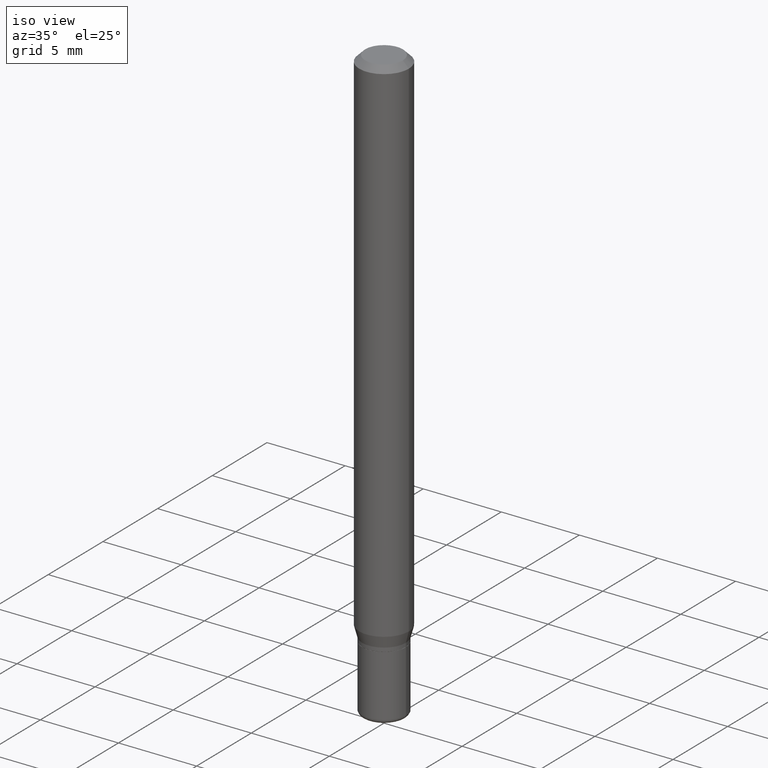
[diagram: clean part render]
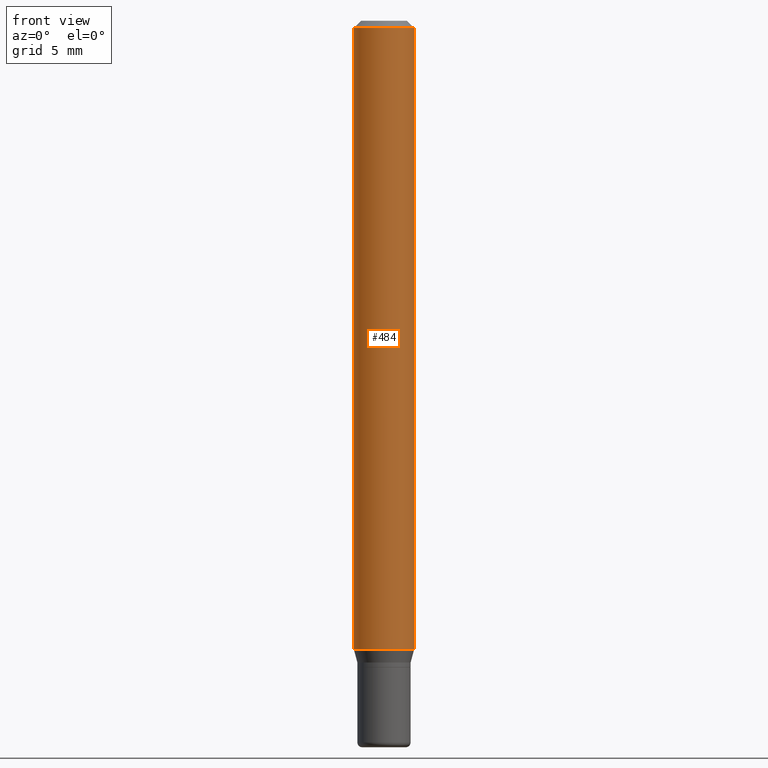
[diagram: tour spotlight — one face highlighted and labeled with its STEP entity id]
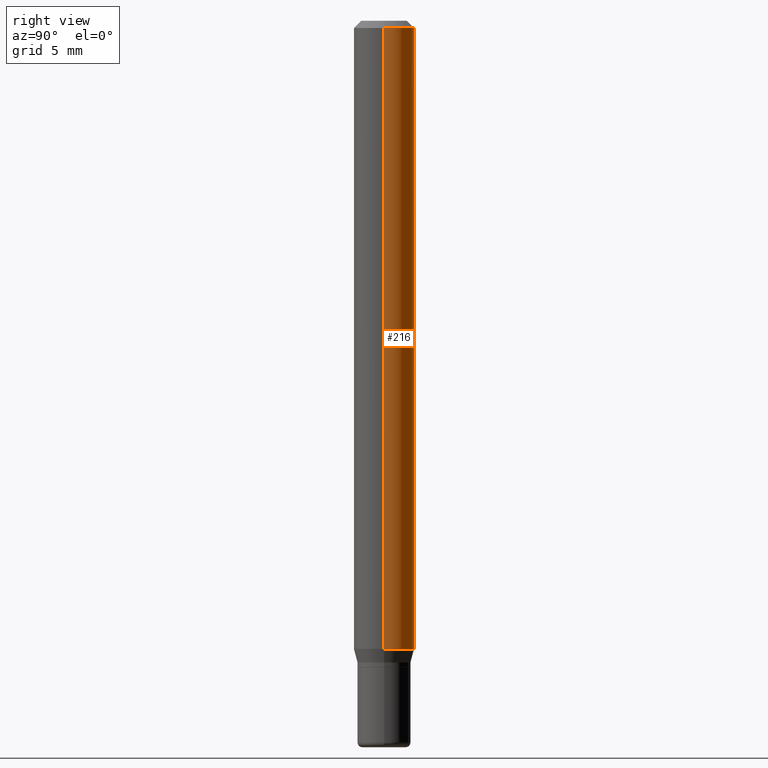
[diagram: tour spotlight — one face highlighted and labeled with its STEP entity id]
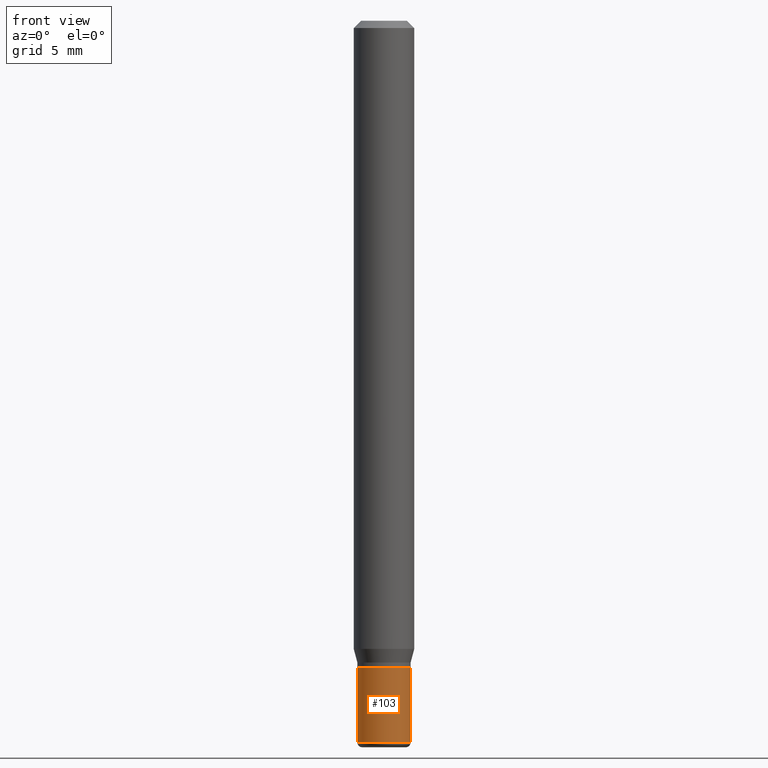
[diagram: tour spotlight — one face highlighted and labeled with its STEP entity id]
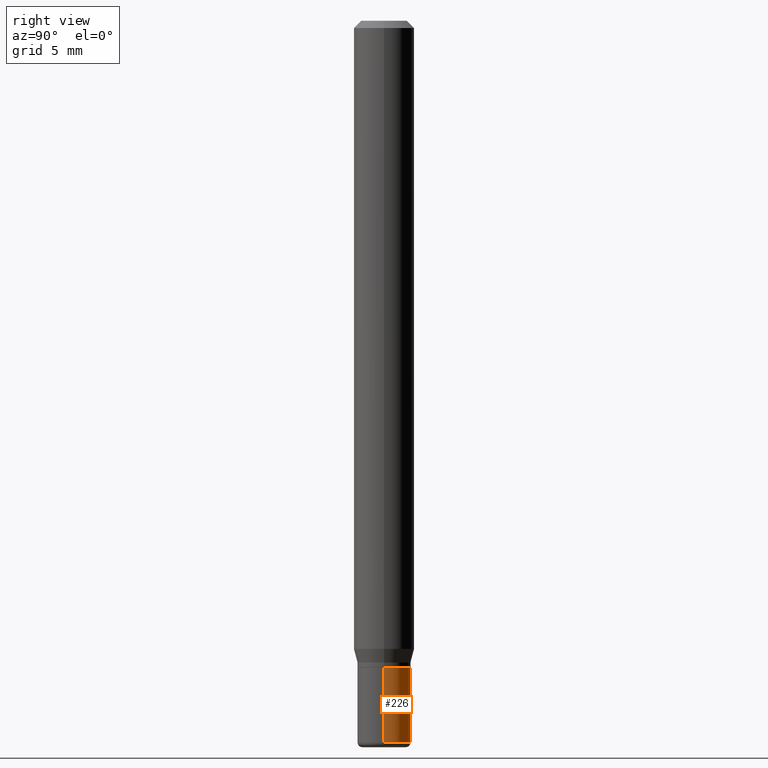
[diagram: tour spotlight — one face highlighted and labeled with its STEP entity id]
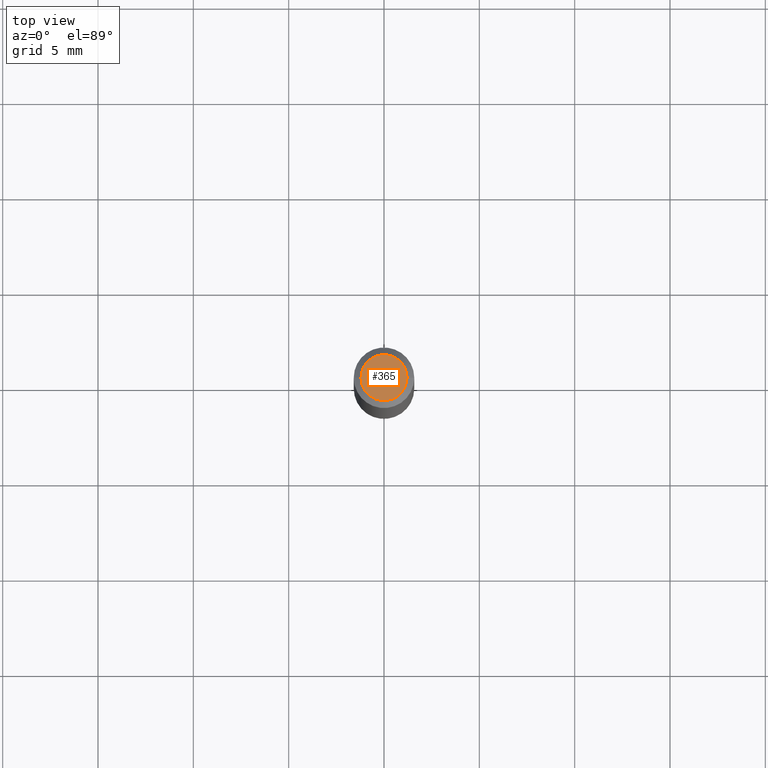
[diagram: tour spotlight — one face highlighted and labeled with its STEP entity id]
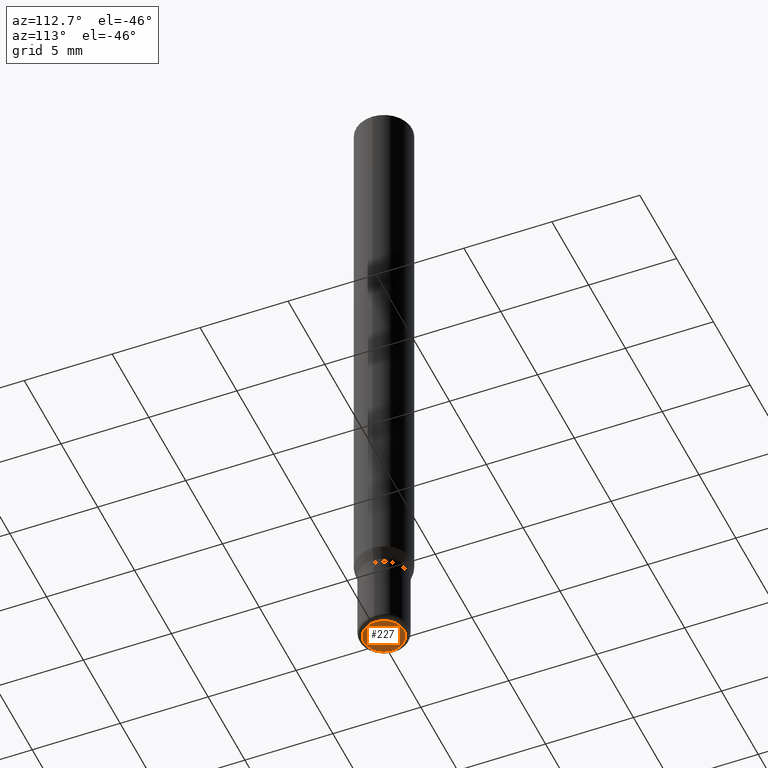
[diagram: tour spotlight — one face highlighted and labeled with its STEP entity id]
A machine part: a face-by-face anatomy tour. The part has 18 B-rep faces; the first image is the clean iso view, then the 6 largest visible faces are spotlighted one at a time (largest first), each with its STEP entity span.

Face 1 — front view, entity #484. In plain terms, the highlighted cylindrical surface (edge-blend (fillet) strip) has radius 1.5875 mm, axis along (-0, 0, 1).
Definition (entity closure, byte-faithful):
#86 = DIRECTION ( 'NONE',  ( -2.445468806185136877E-29, 3.491481338843145188E-15, 1.000000000000000000 ) ) ;
#96 = DIRECTION ( 'NONE',  ( -2.445468806185136877E-29, 3.491481338843145188E-15, 1.000000000000000000 ) ) ;
#119 = CARTESIAN_POINT ( 'NONE',  ( -0.06250000000000000000, -1.846339340611439838E-15, -0.01499999999999970281 ) ) ;
#122 = EDGE_CURVE ( 'NONE', #348, #471, #427, .T. ) ;
#139 = DIRECTION ( 'NONE',  ( -2.445468806185136597E-29, 3.491481338843145583E-15, 1.000000000000000000 ) ) ;
#146 = CYLINDRICAL_SURFACE ( 'NONE', #515, 0.06250000000000000000 ) ;
#147 = CARTESIAN_POINT ( 'NONE',  ( 0.000000000000000000, 0.000000000000000000, 0.000000000000000000 ) ) ;
#160 = CARTESIAN_POINT ( 'NONE',  ( 0.06250000000000000000, -4.888073874380378612E-16, -0.01499999999999970281 ) ) ;
#199 = DIRECTION ( 'NONE',  ( 1.000000000000000000, -6.982962677686266711E-15, 0.000000000000000000 ) ) ;
#209 = LINE ( 'NONE', #446, #459 ) ;
#212 = LINE ( 'NONE', #373, #450 ) ;
#222 = CARTESIAN_POINT ( 'NONE',  ( 0.06250000000000000000, -4.964920048195750682E-15, -1.297009618943233633 ) ) ;
#239 = CARTESIAN_POINT ( 'NONE',  ( 3.668203209277632395E-31, -5.237222008264614861E-17, -0.01499999999999970281 ) ) ;
#250 = FACE_OUTER_BOUND ( 'NONE', #266, .T. ) ;
#252 = AXIS2_PLACEMENT_3D ( 'NONE', #239, #404, #199 ) ;
#266 = EDGE_LOOP ( 'NONE', ( #509, #422, #306, #353 ) ) ;
#291 = DIRECTION ( 'NONE',  ( 1.000000000000000000, -6.982962677686262766E-15, 0.000000000000000000 ) ) ;
#306 = ORIENTED_EDGE ( 'NONE', *, *, #313, .T. ) ;
#313 = EDGE_CURVE ( 'NONE', #501, #471, #212, .T. ) ;
#327 = CARTESIAN_POINT ( 'NONE',  ( -0.06250000000000000000, -4.084395670990297185E-15, -1.297009618943233633 ) ) ;
#331 = EDGE_CURVE ( 'NONE', #396, #501, #384, .T. ) ;
#336 = CARTESIAN_POINT ( 'NONE',  ( 3.171796564447748341E-29, -4.528484880840359801E-15, -1.297009618943233633 ) ) ;
#348 = VERTEX_POINT ( 'NONE', #119 ) ;
#352 = EDGE_CURVE ( 'NONE', #396, #348, #209, .T. ) ;
#353 = ORIENTED_EDGE ( 'NONE', *, *, #122, .F. ) ;
#373 = CARTESIAN_POINT ( 'NONE',  ( 0.06250000000000000000, -4.364351673553916694E-16, 3.047610484872459871E-30 ) ) ;
#384 = CIRCLE ( 'NONE', #507, 0.06250000000000000000 ) ;
#396 = VERTEX_POINT ( 'NONE', #327 ) ;
#404 = DIRECTION ( 'NONE',  ( -2.445468806185136597E-29, 3.491481338843145583E-15, 1.000000000000000000 ) ) ;
#418 = DIRECTION ( 'NONE',  ( -2.445468806185136597E-29, 3.491481338843145583E-15, 1.000000000000000000 ) ) ;
#422 = ORIENTED_EDGE ( 'NONE', *, *, #331, .T. ) ;
#423 = DIRECTION ( 'NONE',  ( 1.000000000000000000, -6.982962677686266711E-15, 4.876176775795935793E-29 ) ) ;
#427 = CIRCLE ( 'NONE', #252, 0.06250000000000000000 ) ;
#446 = CARTESIAN_POINT ( 'NONE',  ( -0.06250000000000000000, 4.440892098500626162E-16, -3.074334431409316114E-30 ) ) ;
#450 = VECTOR ( 'NONE', #96, 39.37007874015748143 ) ;
#459 = VECTOR ( 'NONE', #86, 39.37007874015748143 ) ;
#471 = VERTEX_POINT ( 'NONE', #160 ) ;
#484 = ADVANCED_FACE ( 'NONE', ( #250 ), #146, .T. ) ;
#501 = VERTEX_POINT ( 'NONE', #222 ) ;
#507 = AXIS2_PLACEMENT_3D ( 'NONE', #336, #139, #291 ) ;
#509 = ORIENTED_EDGE ( 'NONE', *, *, #352, .F. ) ;
#515 = AXIS2_PLACEMENT_3D ( 'NONE', #147, #418, #423 ) ;

Face 2 — right view, entity #216. In plain terms, the highlighted cylindrical surface (edge-blend (fillet) strip) has radius 1.5875 mm, axis along (-0, 0, 1).
Definition (entity closure, byte-faithful):
#12 = DIRECTION ( 'NONE',  ( 1.000000000000000000, -6.982962677686266711E-15, 0.000000000000000000 ) ) ;
#16 = DIRECTION ( 'NONE',  ( -2.445468806185136597E-29, 3.491481338843145583E-15, 1.000000000000000000 ) ) ;
#57 = DIRECTION ( 'NONE',  ( 1.000000000000000000, -6.982962677686262766E-15, 0.000000000000000000 ) ) ;
#60 = FACE_OUTER_BOUND ( 'NONE', #221, .T. ) ;
#86 = DIRECTION ( 'NONE',  ( -2.445468806185136877E-29, 3.491481338843145188E-15, 1.000000000000000000 ) ) ;
#96 = DIRECTION ( 'NONE',  ( -2.445468806185136877E-29, 3.491481338843145188E-15, 1.000000000000000000 ) ) ;
#111 = ORIENTED_EDGE ( 'NONE', *, *, #313, .F. ) ;
#119 = CARTESIAN_POINT ( 'NONE',  ( -0.06250000000000000000, -1.846339340611439838E-15, -0.01499999999999970281 ) ) ;
#132 = DIRECTION ( 'NONE',  ( -2.445468806185136597E-29, 3.491481338843145583E-15, 1.000000000000000000 ) ) ;
#160 = CARTESIAN_POINT ( 'NONE',  ( 0.06250000000000000000, -4.888073874380378612E-16, -0.01499999999999970281 ) ) ;
#175 = DIRECTION ( 'NONE',  ( -2.445468806185136597E-29, 3.491481338843145583E-15, 1.000000000000000000 ) ) ;
#195 = EDGE_CURVE ( 'NONE', #501, #396, #205, .T. ) ;
#198 = AXIS2_PLACEMENT_3D ( 'NONE', #253, #175, #283 ) ;
#205 = CIRCLE ( 'NONE', #319, 0.06250000000000000000 ) ;
#209 = LINE ( 'NONE', #446, #459 ) ;
#212 = LINE ( 'NONE', #373, #450 ) ;
#216 = ADVANCED_FACE ( 'NONE', ( #60 ), #381, .T. ) ;
#221 = EDGE_LOOP ( 'NONE', ( #310, #512, #332, #111 ) ) ;
#222 = CARTESIAN_POINT ( 'NONE',  ( 0.06250000000000000000, -4.964920048195750682E-15, -1.297009618943233633 ) ) ;
#253 = CARTESIAN_POINT ( 'NONE',  ( 0.000000000000000000, 0.000000000000000000, 0.000000000000000000 ) ) ;
#269 = CIRCLE ( 'NONE', #366, 0.06250000000000000000 ) ;
#283 = DIRECTION ( 'NONE',  ( 1.000000000000000000, -6.982962677686266711E-15, 4.876176775795935793E-29 ) ) ;
#310 = ORIENTED_EDGE ( 'NONE', *, *, #195, .T. ) ;
#313 = EDGE_CURVE ( 'NONE', #501, #471, #212, .T. ) ;
#319 = AXIS2_PLACEMENT_3D ( 'NONE', #378, #16, #57 ) ;
#327 = CARTESIAN_POINT ( 'NONE',  ( -0.06250000000000000000, -4.084395670990297185E-15, -1.297009618943233633 ) ) ;
#332 = ORIENTED_EDGE ( 'NONE', *, *, #405, .F. ) ;
#348 = VERTEX_POINT ( 'NONE', #119 ) ;
#352 = EDGE_CURVE ( 'NONE', #396, #348, #209, .T. ) ;
#366 = AXIS2_PLACEMENT_3D ( 'NONE', #490, #132, #12 ) ;
#373 = CARTESIAN_POINT ( 'NONE',  ( 0.06250000000000000000, -4.364351673553916694E-16, 3.047610484872459871E-30 ) ) ;
#378 = CARTESIAN_POINT ( 'NONE',  ( 3.171796564447748341E-29, -4.528484880840359801E-15, -1.297009618943233633 ) ) ;
#381 = CYLINDRICAL_SURFACE ( 'NONE', #198, 0.06250000000000000000 ) ;
#396 = VERTEX_POINT ( 'NONE', #327 ) ;
#405 = EDGE_CURVE ( 'NONE', #471, #348, #269, .T. ) ;
#446 = CARTESIAN_POINT ( 'NONE',  ( -0.06250000000000000000, 4.440892098500626162E-16, -3.074334431409316114E-30 ) ) ;
#450 = VECTOR ( 'NONE', #96, 39.37007874015748143 ) ;
#459 = VECTOR ( 'NONE', #86, 39.37007874015748143 ) ;
#471 = VERTEX_POINT ( 'NONE', #160 ) ;
#490 = CARTESIAN_POINT ( 'NONE',  ( 3.668203209277632395E-31, -5.237222008264614861E-17, -0.01499999999999970281 ) ) ;
#501 = VERTEX_POINT ( 'NONE', #222 ) ;
#512 = ORIENTED_EDGE ( 'NONE', *, *, #352, .T. ) ;

Face 3 — front view, entity #103. In plain terms, the highlighted cylindrical surface (edge-blend (fillet) strip) has radius 1.397 mm, axis along (-0, 0, 1).
Definition (entity closure, byte-faithful):
#21 = VERTEX_POINT ( 'NONE', #486 ) ;
#24 = AXIS2_PLACEMENT_3D ( 'NONE', #321, #165, #482 ) ;
#53 = AXIS2_PLACEMENT_3D ( 'NONE', #285, #338, #144 ) ;
#54 = VERTEX_POINT ( 'NONE', #236 ) ;
#56 = DIRECTION ( 'NONE',  ( -2.445468806185136877E-29, 3.491481338843145188E-15, 1.000000000000000000 ) ) ;
#74 = EDGE_LOOP ( 'NONE', ( #191, #299, #277, #154 ) ) ;
#103 = ADVANCED_FACE ( 'NONE', ( #166 ), #125, .T. ) ;
#114 = EDGE_CURVE ( 'NONE', #21, #492, #488, .T. ) ;
#125 = CYLINDRICAL_SURFACE ( 'NONE', #480, 0.05499999999999997946 ) ;
#144 = DIRECTION ( 'NONE',  ( 1.000000000000000000, -6.982962677686269077E-15, 0.000000000000000000 ) ) ;
#154 = ORIENTED_EDGE ( 'NONE', *, *, #413, .F. ) ;
#165 = DIRECTION ( 'NONE',  ( -2.445468806185136597E-29, 3.491481338843145583E-15, 1.000000000000000000 ) ) ;
#166 = FACE_OUTER_BOUND ( 'NONE', #74, .T. ) ;
#191 = ORIENTED_EDGE ( 'NONE', *, *, #504, .F. ) ;
#236 = CARTESIAN_POINT ( 'NONE',  ( -0.05500000000000000028, -4.540918886447888559E-15, -1.335000000000000187 ) ) ;
#267 = EDGE_CURVE ( 'NONE', #335, #21, #281, .T. ) ;
#277 = ORIENTED_EDGE ( 'NONE', *, *, #114, .T. ) ;
#281 = CIRCLE ( 'NONE', #53, 0.05499999999999995171 ) ;
#285 = CARTESIAN_POINT ( 'NONE',  ( 3.643748521215853910E-29, -5.202307194876288105E-15, -1.490000000000000213 ) ) ;
#287 = LINE ( 'NONE', #425, #451 ) ;
#299 = ORIENTED_EDGE ( 'NONE', *, *, #267, .T. ) ;
#321 = CARTESIAN_POINT ( 'NONE',  ( 3.264700856257157760E-29, -4.661127587355599122E-15, -1.335000000000000187 ) ) ;
#322 = DIRECTION ( 'NONE',  ( 1.000000000000000000, -6.982962677686265922E-15, 4.876176775795935232E-29 ) ) ;
#324 = CARTESIAN_POINT ( 'NONE',  ( 0.000000000000000000, 0.000000000000000000, 0.000000000000000000 ) ) ;
#326 = DIRECTION ( 'NONE',  ( -2.445468806185136597E-29, 3.491481338843145583E-15, 1.000000000000000000 ) ) ;
#335 = VERTEX_POINT ( 'NONE', #460 ) ;
#338 = DIRECTION ( 'NONE',  ( -2.445468806185136597E-29, 3.491481338843145583E-15, 1.000000000000000000 ) ) ;
#345 = VECTOR ( 'NONE', #439, 39.37007874015748143 ) ;
#375 = CARTESIAN_POINT ( 'NONE',  ( 0.05500000000000000028, -5.045190534628344107E-15, -1.335000000000000187 ) ) ;
#413 = EDGE_CURVE ( 'NONE', #54, #492, #499, .T. ) ;
#425 = CARTESIAN_POINT ( 'NONE',  ( -0.05499999999999997946, 3.907985046680549563E-16, -2.705414299640196961E-30 ) ) ;
#439 = DIRECTION ( 'NONE',  ( -2.445468806185136877E-29, 3.491481338843145188E-15, 1.000000000000000000 ) ) ;
#451 = VECTOR ( 'NONE', #56, 39.37007874015748143 ) ;
#460 = CARTESIAN_POINT ( 'NONE',  ( -0.05499999999999995171, -4.540918886447888559E-15, -1.490000000000000213 ) ) ;
#480 = AXIS2_PLACEMENT_3D ( 'NONE', #324, #326, #322 ) ;
#482 = DIRECTION ( 'NONE',  ( 1.000000000000000000, -6.982962677686262766E-15, 0.000000000000000000 ) ) ;
#483 = CARTESIAN_POINT ( 'NONE',  ( 0.05499999999999997946, -3.840629472727444916E-16, 2.681897226687763425E-30 ) ) ;
#486 = CARTESIAN_POINT ( 'NONE',  ( 0.05499999999999995171, -5.586370142149032301E-15, -1.490000000000000213 ) ) ;
#488 = LINE ( 'NONE', #483, #345 ) ;
#492 = VERTEX_POINT ( 'NONE', #375 ) ;
#499 = CIRCLE ( 'NONE', #24, 0.05500000000000000028 ) ;
#504 = EDGE_CURVE ( 'NONE', #335, #54, #287, .T. ) ;

Face 4 — right view, entity #226. In plain terms, the highlighted cylindrical surface (edge-blend (fillet) strip) has radius 1.397 mm, axis along (-0, 0, 1).
Definition (entity closure, byte-faithful):
#21 = VERTEX_POINT ( 'NONE', #486 ) ;
#33 = EDGE_CURVE ( 'NONE', #492, #54, #293, .T. ) ;
#52 = DIRECTION ( 'NONE',  ( 1.000000000000000000, -6.982962677686269077E-15, 0.000000000000000000 ) ) ;
#54 = VERTEX_POINT ( 'NONE', #236 ) ;
#56 = DIRECTION ( 'NONE',  ( -2.445468806185136877E-29, 3.491481338843145188E-15, 1.000000000000000000 ) ) ;
#107 = AXIS2_PLACEMENT_3D ( 'NONE', #278, #411, #441 ) ;
#113 = CIRCLE ( 'NONE', #356, 0.05499999999999995171 ) ;
#114 = EDGE_CURVE ( 'NONE', #21, #492, #488, .T. ) ;
#133 = FACE_OUTER_BOUND ( 'NONE', #244, .T. ) ;
#153 = ORIENTED_EDGE ( 'NONE', *, *, #273, .T. ) ;
#179 = CARTESIAN_POINT ( 'NONE',  ( 3.643748521215853910E-29, -5.202307194876288105E-15, -1.490000000000000213 ) ) ;
#226 = ADVANCED_FACE ( 'NONE', ( #133 ), #334, .T. ) ;
#236 = CARTESIAN_POINT ( 'NONE',  ( -0.05500000000000000028, -4.540918886447888559E-15, -1.335000000000000187 ) ) ;
#238 = ORIENTED_EDGE ( 'NONE', *, *, #504, .T. ) ;
#244 = EDGE_LOOP ( 'NONE', ( #153, #238, #391, #474 ) ) ;
#273 = EDGE_CURVE ( 'NONE', #21, #335, #113, .T. ) ;
#278 = CARTESIAN_POINT ( 'NONE',  ( 3.264700856257157760E-29, -4.661127587355599122E-15, -1.335000000000000187 ) ) ;
#287 = LINE ( 'NONE', #425, #451 ) ;
#293 = CIRCLE ( 'NONE', #107, 0.05500000000000000028 ) ;
#303 = AXIS2_PLACEMENT_3D ( 'NONE', #414, #494, #453 ) ;
#334 = CYLINDRICAL_SURFACE ( 'NONE', #303, 0.05499999999999997946 ) ;
#335 = VERTEX_POINT ( 'NONE', #460 ) ;
#345 = VECTOR ( 'NONE', #439, 39.37007874015748143 ) ;
#356 = AXIS2_PLACEMENT_3D ( 'NONE', #179, #454, #52 ) ;
#375 = CARTESIAN_POINT ( 'NONE',  ( 0.05500000000000000028, -5.045190534628344107E-15, -1.335000000000000187 ) ) ;
#391 = ORIENTED_EDGE ( 'NONE', *, *, #33, .F. ) ;
#411 = DIRECTION ( 'NONE',  ( -2.445468806185136597E-29, 3.491481338843145583E-15, 1.000000000000000000 ) ) ;
#414 = CARTESIAN_POINT ( 'NONE',  ( 0.000000000000000000, 0.000000000000000000, 0.000000000000000000 ) ) ;
#425 = CARTESIAN_POINT ( 'NONE',  ( -0.05499999999999997946, 3.907985046680549563E-16, -2.705414299640196961E-30 ) ) ;
#439 = DIRECTION ( 'NONE',  ( -2.445468806185136877E-29, 3.491481338843145188E-15, 1.000000000000000000 ) ) ;
#441 = DIRECTION ( 'NONE',  ( 1.000000000000000000, -6.982962677686262766E-15, 0.000000000000000000 ) ) ;
#451 = VECTOR ( 'NONE', #56, 39.37007874015748143 ) ;
#453 = DIRECTION ( 'NONE',  ( 1.000000000000000000, -6.982962677686265922E-15, 4.876176775795935232E-29 ) ) ;
#454 = DIRECTION ( 'NONE',  ( -2.445468806185136597E-29, 3.491481338843145583E-15, 1.000000000000000000 ) ) ;
#460 = CARTESIAN_POINT ( 'NONE',  ( -0.05499999999999995171, -4.540918886447888559E-15, -1.490000000000000213 ) ) ;
#474 = ORIENTED_EDGE ( 'NONE', *, *, #114, .F. ) ;
#483 = CARTESIAN_POINT ( 'NONE',  ( 0.05499999999999997946, -3.840629472727444916E-16, 2.681897226687763425E-30 ) ) ;
#486 = CARTESIAN_POINT ( 'NONE',  ( 0.05499999999999995171, -5.586370142149032301E-15, -1.490000000000000213 ) ) ;
#488 = LINE ( 'NONE', #483, #345 ) ;
#492 = VERTEX_POINT ( 'NONE', #375 ) ;
#494 = DIRECTION ( 'NONE',  ( -2.445468806185136597E-29, 3.491481338843145583E-15, 1.000000000000000000 ) ) ;
#504 = EDGE_CURVE ( 'NONE', #335, #54, #287, .T. ) ;

Face 5 — top view, entity #365. In plain terms, the highlighted planar face has unit normal (0, -0, -1).
Definition (entity closure, byte-faithful):
#42 = DIRECTION ( 'NONE',  ( -2.445468806185136597E-29, 3.491481338843145583E-15, 1.000000000000000000 ) ) ;
#69 = EDGE_LOOP ( 'NONE', ( #190, #264 ) ) ;
#101 = CARTESIAN_POINT ( 'NONE',  ( 0.04750000000000000749, -4.035134999187568762E-16, 2.731847993664288856E-16 ) ) ;
#128 = CARTESIAN_POINT ( 'NONE',  ( -0.04750000000000000749, 3.578768372314221353E-16, 2.731847993664239060E-16 ) ) ;
#137 = EDGE_CURVE ( 'NONE', #215, #183, #171, .T. ) ;
#159 = CARTESIAN_POINT ( 'NONE',  ( -6.680649051745406845E-45, 9.538196290434862081E-31, 2.731847993664263218E-16 ) ) ;
#171 = CIRCLE ( 'NONE', #419, 0.04750000000000000749 ) ;
#183 = VERTEX_POINT ( 'NONE', #128 ) ;
#190 = ORIENTED_EDGE ( 'NONE', *, *, #430, .T. ) ;
#202 = FACE_OUTER_BOUND ( 'NONE', #69, .T. ) ;
#215 = VERTEX_POINT ( 'NONE', #101 ) ;
#230 = AXIS2_PLACEMENT_3D ( 'NONE', #279, #410, #371 ) ;
#243 = DIRECTION ( 'NONE',  ( 1.000000000000000000, -6.982962677686266711E-15, 4.852736867747365086E-29 ) ) ;
#245 = AXIS2_PLACEMENT_3D ( 'NONE', #407, #42, #243 ) ;
#264 = ORIENTED_EDGE ( 'NONE', *, *, #137, .T. ) ;
#274 = PLANE ( 'NONE',  #230 ) ;
#279 = CARTESIAN_POINT ( 'NONE',  ( 3.316907271900976589E-16, 0.04750000000000000749, -2.925296391183627249E-17 ) ) ;
#311 = CIRCLE ( 'NONE', #245, 0.04750000000000000749 ) ;
#316 = DIRECTION ( 'NONE',  ( -2.445468806185136597E-29, 3.491481338843145583E-15, 1.000000000000000000 ) ) ;
#365 = ADVANCED_FACE ( 'NONE', ( #202 ), #274, .F. ) ;
#371 = DIRECTION ( 'NONE',  ( -1.000000000000000000, 6.982962677686265922E-15, -4.876176775795935793E-29 ) ) ;
#407 = CARTESIAN_POINT ( 'NONE',  ( -6.680649051745406845E-45, 9.538196290434862081E-31, 2.731847993664263218E-16 ) ) ;
#410 = DIRECTION ( 'NONE',  ( 2.438088387897960049E-29, -3.491481338843145188E-15, -1.000000000000000000 ) ) ;
#419 = AXIS2_PLACEMENT_3D ( 'NONE', #159, #316, #477 ) ;
#430 = EDGE_CURVE ( 'NONE', #183, #215, #311, .T. ) ;
#477 = DIRECTION ( 'NONE',  ( 1.000000000000000000, -6.982962677686266711E-15, 4.852736867747365086E-29 ) ) ;

Face 6 — auxiliary view, entity #227. In plain terms, the highlighted planar face has unit normal (-0, 0, 1).
Definition (entity closure, byte-faithful):
#14 = CIRCLE ( 'NONE', #398, 0.04499999999999999833 ) ;
#18 = CARTESIAN_POINT ( 'NONE',  ( 3.582686580359766038E-29, -5.359686688179453325E-15, -1.500000000000000222 ) ) ;
#30 = EDGE_LOOP ( 'NONE', ( #258, #382 ) ) ;
#41 = DIRECTION ( 'NONE',  ( -2.445468806185136597E-29, 3.491481338843145583E-15, 1.000000000000000000 ) ) ;
#49 = DIRECTION ( 'NONE',  ( 1.000000000000000000, -6.982962677686265922E-15, 4.876176775795935793E-29 ) ) ;
#71 = VERTEX_POINT ( 'NONE', #401 ) ;
#95 = CARTESIAN_POINT ( 'NONE',  ( 3.668203209277704895E-29, -5.237222008264718177E-15, -1.500000000000000222 ) ) ;
#97 = CIRCLE ( 'NONE', #339, 0.04499999999999999833 ) ;
#127 = EDGE_CURVE ( 'NONE', #71, #246, #14, .T. ) ;
#203 = DIRECTION ( 'NONE',  ( 1.000000000000000000, -6.982962677686269077E-15, 0.000000000000000000 ) ) ;
#218 = AXIS2_PLACEMENT_3D ( 'NONE', #18, #219, #49 ) ;
#219 = DIRECTION ( 'NONE',  ( -2.438088387897960049E-29, 3.491481338843145188E-15, 1.000000000000000000 ) ) ;
#227 = ADVANCED_FACE ( 'NONE', ( #330 ), #248, .F. ) ;
#246 = VERTEX_POINT ( 'NONE', #497 ) ;
#248 = PLANE ( 'NONE',  #218 ) ;
#258 = ORIENTED_EDGE ( 'NONE', *, *, #127, .F. ) ;
#296 = EDGE_CURVE ( 'NONE', #246, #71, #97, .T. ) ;
#297 = DIRECTION ( 'NONE',  ( 1.000000000000000000, -6.982962677686269077E-15, 0.000000000000000000 ) ) ;
#330 = FACE_OUTER_BOUND ( 'NONE', #30, .T. ) ;
#339 = AXIS2_PLACEMENT_3D ( 'NONE', #95, #416, #297 ) ;
#359 = CARTESIAN_POINT ( 'NONE',  ( 3.668203209277704895E-29, -5.237222008264718177E-15, -1.500000000000000222 ) ) ;
#382 = ORIENTED_EDGE ( 'NONE', *, *, #296, .F. ) ;
#398 = AXIS2_PLACEMENT_3D ( 'NONE', #359, #41, #203 ) ;
#401 = CARTESIAN_POINT ( 'NONE',  ( 0.04499999999999999833, -5.551455328760600652E-15, -1.500000000000000222 ) ) ;
#416 = DIRECTION ( 'NONE',  ( -2.445468806185136597E-29, 3.491481338843145583E-15, 1.000000000000000000 ) ) ;
#497 = CARTESIAN_POINT ( 'NONE',  ( -0.04499999999999999833, -4.864493233690452733E-15, -1.500000000000000222 ) ) ;